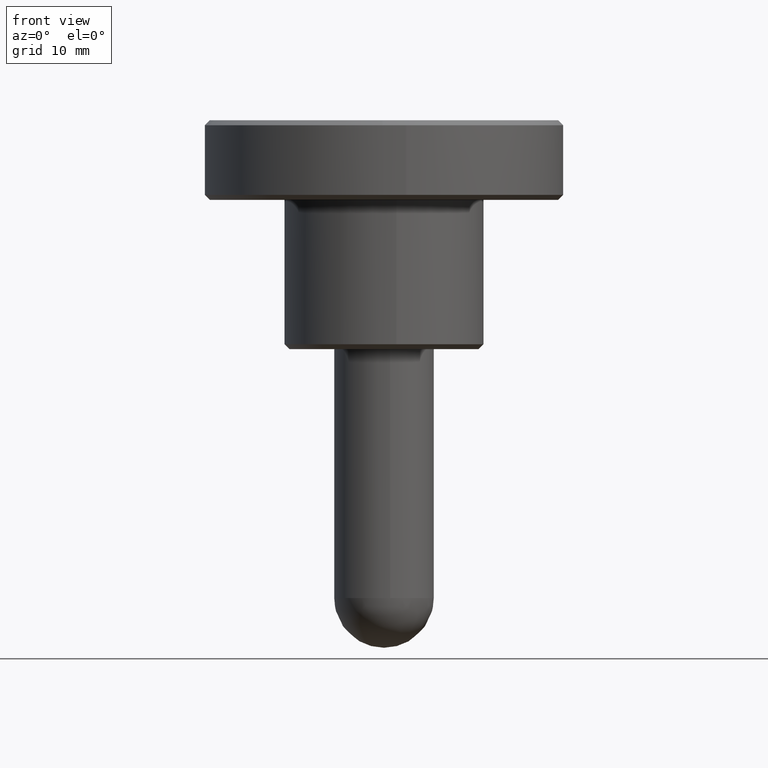
[diagram: clean part render]
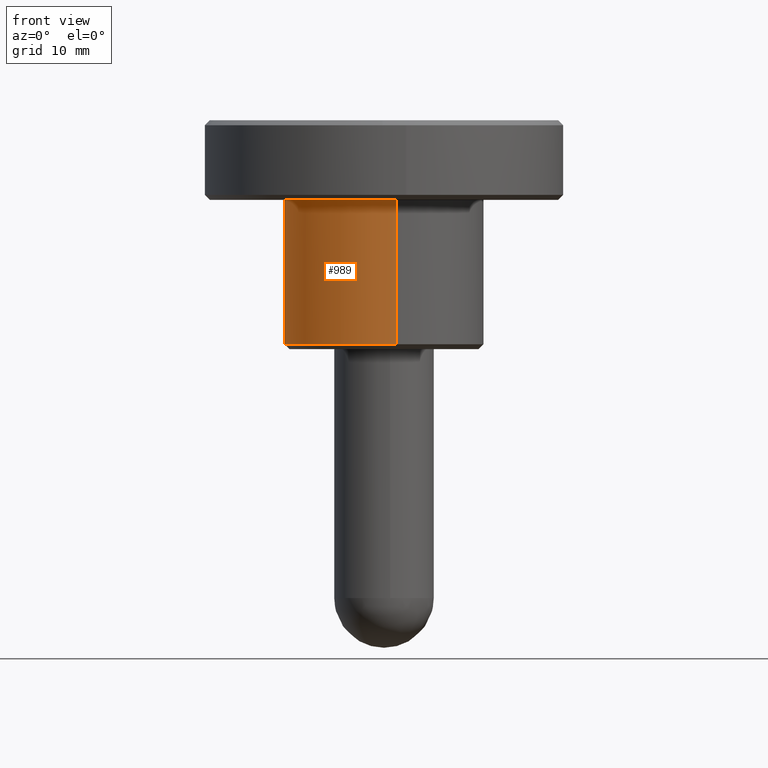
[diagram: same view with one face highlighted and labeled with its STEP entity id]
A machine part, front view. The second image highlights one B-rep face of the part: STEP entity #989.
In plain terms, the highlighted face is a freeform B-spline surface patch.
Its self-contained STEP definition (entity closure, byte-faithful):
#498=CARTESIAN_POINT('',(-4.042154319927587,-9.146638095714618,0.500000000004304));
#499=VERTEX_POINT('',#498);
#500=CARTESIAN_POINT('',(1.241272380013459,-9.922663094076931,0.499999999999901));
#501=VERTEX_POINT('',#500);
#502=CARTESIAN_POINT('',(-4.042154319927588,-9.146638095714618,0.500000000004304));
#503=CARTESIAN_POINT('',(-2.111156172572590,-10.0,0.499999999999945));
#504=CARTESIAN_POINT('',(0.0,-10.0,0.499999999999945));
#505=CARTESIAN_POINT('',(0.623045410220624,-10.000000000000002,0.499999999999945));
#506=CARTESIAN_POINT('',(1.241272380013459,-9.922663094076931,0.499999999999901));
#514=(BOUNDED_CURVE()B_SPLINE_CURVE(2,(#502,#503,#504,#505,#506),.UNSPECIFIED.,.F.,.U.)B_SPLINE_CURVE_WITH_KNOTS((3,2,3),(0.181361578458326,0.250000000000000,0.271473799107639),.UNSPECIFIED.)CURVE()GEOMETRIC_REPRESENTATION_ITEM()RATIONAL_B_SPLINE_CURVE((0.883326595750187,0.919585087121538,1.0,0.974841879436841,0.954005682288873))REPRESENTATION_ITEM(''));
#515=EDGE_CURVE('',#499,#501,#514,.T.);
#558=CARTESIAN_POINT('',(-0.087263212267545,9.999619249339538,0.499999999999496));
#559=VERTEX_POINT('',#558);
#616=CARTESIAN_POINT('',(-10.0,0.0,0.499999999999945));
#617=VERTEX_POINT('',#616);
#618=CARTESIAN_POINT('',(-10.0,0.0,0.499999999999945));
#619=CARTESIAN_POINT('',(-10.0,-6.513700025842954,0.499999999999945));
#620=CARTESIAN_POINT('',(-4.042154319927588,-9.146638095714618,0.500000000004304));
#628=(BOUNDED_CURVE()B_SPLINE_CURVE(2,(#618,#619,#620),.UNSPECIFIED.,.F.,.U.)B_SPLINE_CURVE_WITH_KNOTS((3,3),(0.0,0.181361578458326),.UNSPECIFIED.)CURVE()GEOMETRIC_REPRESENTATION_ITEM()RATIONAL_B_SPLINE_CURVE((1.0,0.787521694065009,0.883326595750187))REPRESENTATION_ITEM(''));
#629=EDGE_CURVE('',#617,#499,#628,.T.);
#631=CARTESIAN_POINT('',(-0.087263212267545,9.999619249339538,0.499999999999496));
#632=CARTESIAN_POINT('',(-9.999999999999998,9.913114230210349,0.499999999999945));
#633=CARTESIAN_POINT('',(-10.0,0.0,0.499999999999945));
#641=(BOUNDED_CURVE()B_SPLINE_CURVE(2,(#631,#632,#633),.UNSPECIFIED.,.F.,.U.)B_SPLINE_CURVE_WITH_KNOTS((3,3),(0.751539856591150,1.0),.UNSPECIFIED.)CURVE()GEOMETRIC_REPRESENTATION_ITEM()RATIONAL_B_SPLINE_CURVE((0.996414115450233,0.708910835400520,1.0))REPRESENTATION_ITEM(''));
#642=EDGE_CURVE('',#559,#617,#641,.T.);
#883=CARTESIAN_POINT('',(-0.087259972945896,9.999619277607147,15.0));
#884=VERTEX_POINT('',#883);
#885=CARTESIAN_POINT('',(-0.087263212267545,9.999619249339538,0.499999999999496));
#886=CARTESIAN_POINT('',(-0.087259972945896,9.999619277607147,15.0));
#887=QUASI_UNIFORM_CURVE('',1,(#885,#886),.UNSPECIFIED.,.F.,.U.);
#888=EDGE_CURVE('',#559,#884,#887,.T.);
#907=CARTESIAN_POINT('',(1.241270529552836,-9.922663325557917,15.0));
#908=VERTEX_POINT('',#907);
#922=CARTESIAN_POINT('',(1.241272380013459,-9.922663094076931,0.499999999999901));
#923=CARTESIAN_POINT('',(1.241270529552836,-9.922663325557917,15.0));
#924=QUASI_UNIFORM_CURVE('',1,(#922,#923),.UNSPECIFIED.,.F.,.U.);
#925=EDGE_CURVE('',#501,#908,#924,.T.);
#930=CARTESIAN_POINT('',(-0.087265354983739,9.999619230641709,0.137499999999943));
#931=CARTESIAN_POINT('',(-10.086884585625448,9.912353875657971,0.137499999999943));
#932=CARTESIAN_POINT('',(-9.999619230641709,-0.087265354983739,0.137499999999943));
#933=CARTESIAN_POINT('',(-9.912353875657971,-10.086884585625448,0.137499999999943));
#934=CARTESIAN_POINT('',(0.087265354983739,-9.999619230641709,0.137499999999943));
#935=CARTESIAN_POINT('',(0.666501589581736,-9.994564312602755,0.137499999999943));
#936=CARTESIAN_POINT('',(1.241280020798293,-9.922662138255385,0.137499999999943));
#937=CARTESIAN_POINT('',(-0.087265354983739,9.999619230641709,15.371562500000000));
#938=CARTESIAN_POINT('',(-10.086884585625448,9.912353875657971,15.371562500000001));
#939=CARTESIAN_POINT('',(-9.999619230641709,-0.087265354983739,15.371562500000000));
#940=CARTESIAN_POINT('',(-9.912353875657971,-10.086884585625448,15.371562500000001));
#941=CARTESIAN_POINT('',(0.087265354983739,-9.999619230641709,15.371562500000000));
#942=CARTESIAN_POINT('',(0.666501589581736,-9.994564312602755,15.371562500000001));
#943=CARTESIAN_POINT('',(1.241280020798293,-9.922662138255385,15.371562500000005));
#951=(BOUNDED_SURFACE()B_SPLINE_SURFACE(2,1,((#930,#937),(#931,#938),(#932,#939),(#933,#940),(#934,#941),(#935,#942),(#936,#943)),.UNSPECIFIED.,.F.,.F.,.U.)B_SPLINE_SURFACE_WITH_KNOTS((3,2,2,3),(2,2),(0.0,16.568542494923800,33.137084989847587,34.462568389441500),(0.0,15.234062500000061),.UNSPECIFIED.)GEOMETRIC_REPRESENTATION_ITEM()RATIONAL_B_SPLINE_SURFACE(((1.0,1.0),(0.707106781186548,0.707106781186548),(1.0,1.0),(0.707106781186548,0.707106781186548),(1.0,1.0),(0.976568542494924,0.976568542494924),(0.956886118190660,0.956886118190660)))REPRESENTATION_ITEM('')SURFACE());
#952=ORIENTED_EDGE('',*,*,#629,.T.);
#953=ORIENTED_EDGE('',*,*,#515,.T.);
#954=ORIENTED_EDGE('',*,*,#925,.T.);
#955=CARTESIAN_POINT('',(-10.0,0.0,15.0));
#956=VERTEX_POINT('',#955);
#957=CARTESIAN_POINT('',(1.241270529552836,-9.922663325557917,14.999999999999996));
#958=CARTESIAN_POINT('',(0.623044474159611,-10.0,15.000000000000004));
#959=CARTESIAN_POINT('',(0.0,-10.0,15.0));
#960=CARTESIAN_POINT('',(-10.000000000000002,-10.000000000000002,14.999999999999995));
#961=CARTESIAN_POINT('',(-10.0,0.0,15.0));
#969=(BOUNDED_CURVE()B_SPLINE_CURVE(2,(#957,#958,#959,#960,#961),.UNSPECIFIED.,.F.,.U.)B_SPLINE_CURVE_WITH_KNOTS((3,2,3),(0.728526232342860,0.750000000000000,1.0),.UNSPECIFIED.)CURVE()GEOMETRIC_REPRESENTATION_ITEM()RATIONAL_B_SPLINE_CURVE((0.954005743322218,0.974841916283392,1.0,0.707106781186548,1.0))REPRESENTATION_ITEM(''));
#970=EDGE_CURVE('',#908,#956,#969,.T.);
#971=ORIENTED_EDGE('',*,*,#970,.T.);
#972=CARTESIAN_POINT('',(-10.0,0.0,15.0));
#973=CARTESIAN_POINT('',(-9.999999999999998,9.913117441631954,15.000000000000002));
#974=CARTESIAN_POINT('',(-0.087259972945896,9.999619277607147,15.000000000000004));
#982=(BOUNDED_CURVE()B_SPLINE_CURVE(2,(#972,#973,#974),.UNSPECIFIED.,.F.,.U.)B_SPLINE_CURVE_WITH_KNOTS((3,3),(0.0,0.248460200469343),.UNSPECIFIED.)CURVE()GEOMETRIC_REPRESENTATION_ITEM()RATIONAL_B_SPLINE_CURVE((1.0,0.708910768549994,0.996414247504272))REPRESENTATION_ITEM(''));
#983=EDGE_CURVE('',#956,#884,#982,.T.);
#984=ORIENTED_EDGE('',*,*,#983,.T.);
#985=ORIENTED_EDGE('',*,*,#888,.F.);
#986=ORIENTED_EDGE('',*,*,#642,.T.);
#987=EDGE_LOOP('',(#952,#953,#954,#971,#984,#985,#986));
#988=FACE_OUTER_BOUND('',#987,.T.);
#989=ADVANCED_FACE('',(#988),#951,.T.);